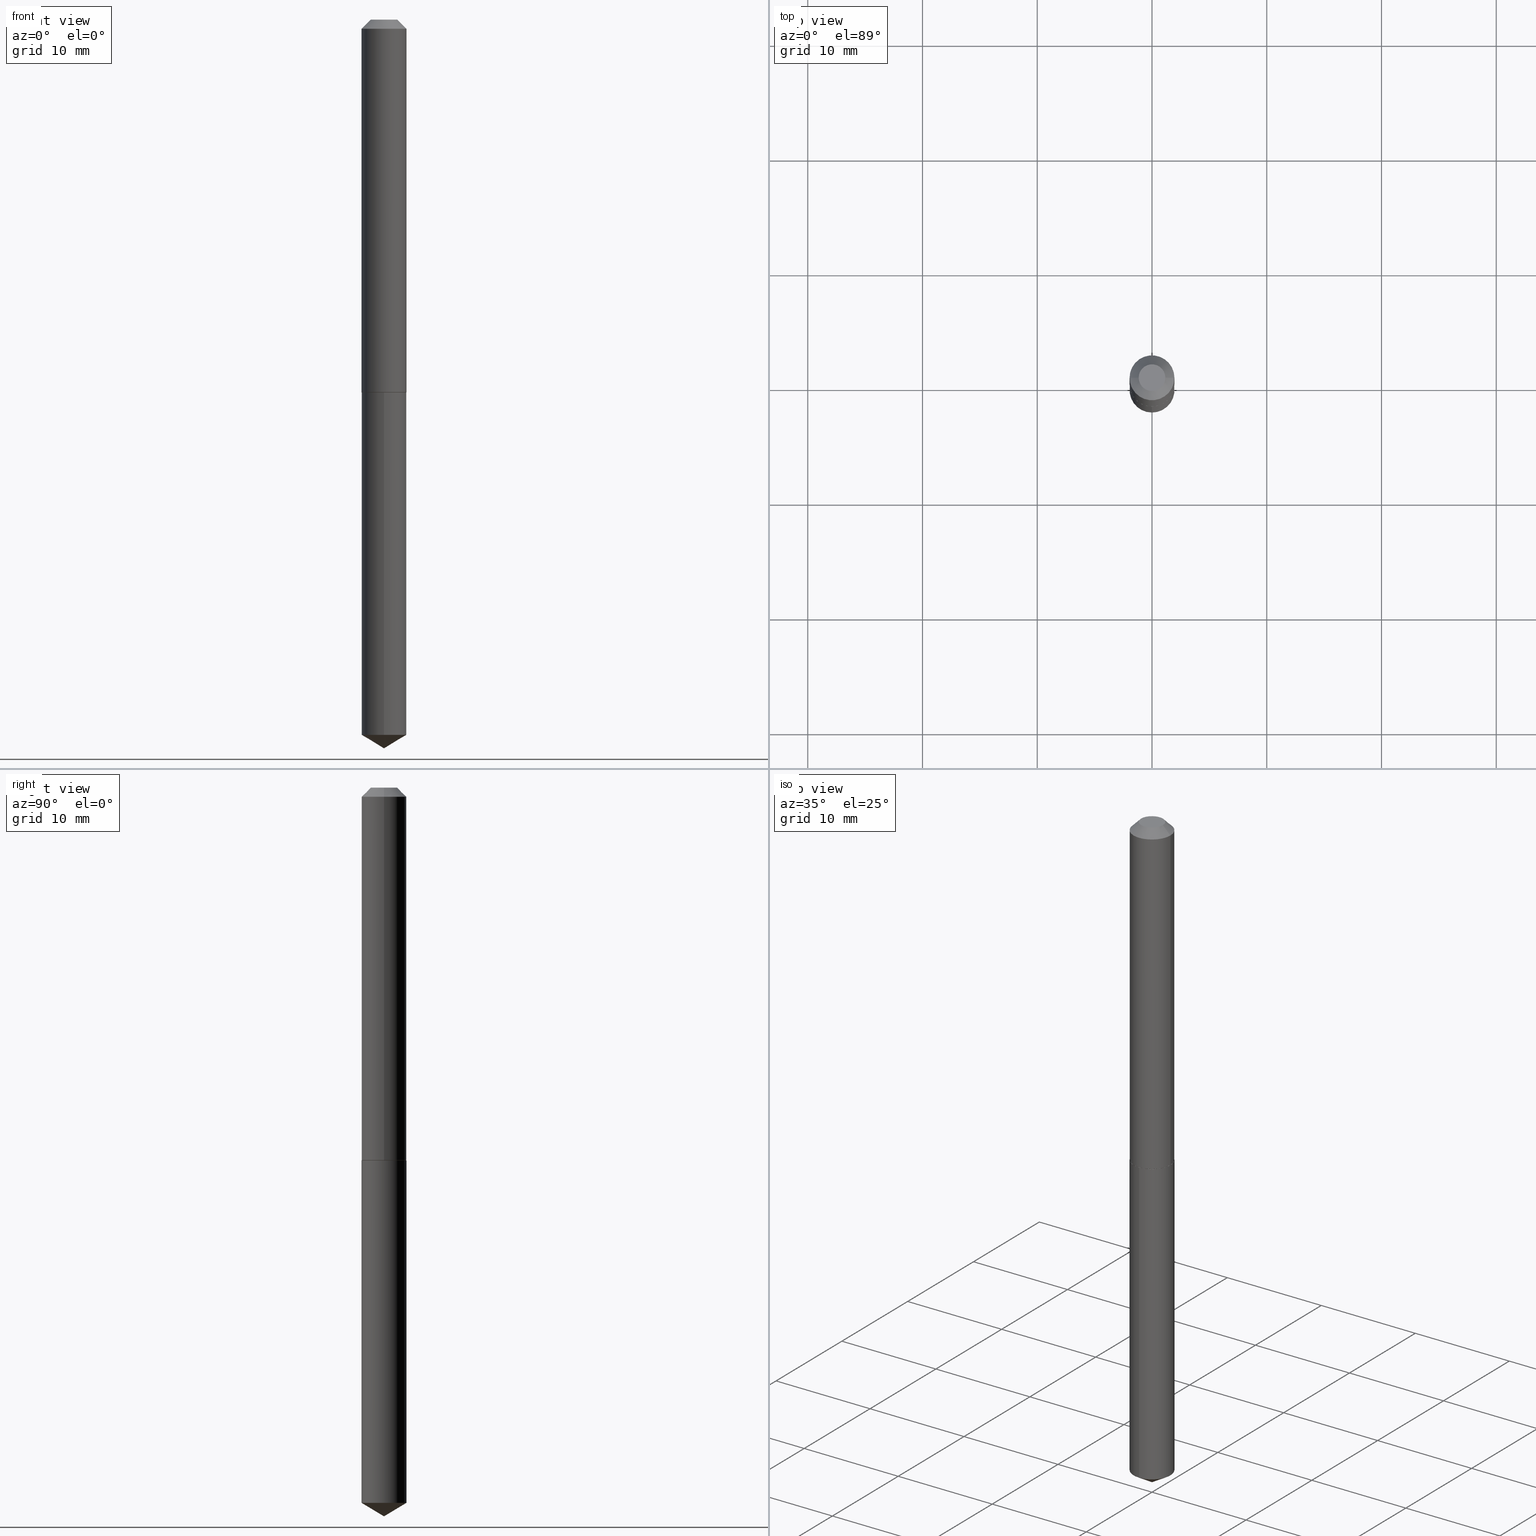
[diagram: canonical four-view strip — front | top / right | iso, engineering-drawing reading convention]
A machine part, canonical four-view strip (front | top / right | iso — engineering-drawing reading convention). The complete STEP part file that produces these views, byte-faithful:
ISO-10303-21;
HEADER;
FILE_DESCRIPTION (( 'STEP AP203' ),
    '1' );
FILE_NAME ('57142.STEP',
    '2024-04-22T22:50:21',
    ( '' ),
    ( '' ),
    'SwSTEP 2.0',
    'SolidWorks 2023',
    '' );
FILE_SCHEMA (( 'CONFIG_CONTROL_DESIGN' ));
ENDSEC;

DATA;
#1 = LINE ( 'NONE', #327, #279 ) ;
#2 = CARTESIAN_POINT ( 'NONE',  ( 5.471179065353372867E-16, 0.07699999999999551648, -1.279000000000000581 ) ) ;
#3 = DIRECTION ( 'NONE',  ( -6.982962677686266711E-15, -1.000000000000000000, 3.547854537226316370E-15 ) ) ;
#4 = CIRCLE ( 'NONE', #12, 0.07699999999999998512 ) ;
#5 =( NAMED_UNIT ( * ) PLANE_ANGLE_UNIT ( ) SI_UNIT ( $, .RADIAN. ) );
#6 = ADVANCED_FACE ( 'NONE', ( #99 ), #270, .T. ) ;
#7 = DIRECTION ( 'NONE',  ( -1.000000000000000000, 6.982962677686266711E-15, 0.000000000000000000 ) ) ;
#8 = ORIENTED_EDGE ( 'NONE', *, *, #277, .T. ) ;
#9 = ORIENTED_EDGE ( 'NONE', *, *, #37, .T. ) ;
#10 = ADVANCED_FACE ( 'NONE', ( #362 ), #113, .T. ) ;
#11 = DIRECTION ( 'NONE',  ( 6.982962677686265922E-15, 1.000000000000000000, -3.491286054920720957E-15 ) ) ;
#12 = AXIS2_PLACEMENT_3D ( 'NONE', #151, #271, #3 ) ;
#13 = CARTESIAN_POINT ( 'NONE',  ( 0.000000000000000000, 0.000000000000000000, 0.000000000000000000 ) ) ;
#14 = ORIENTED_EDGE ( 'NONE', *, *, #37, .F. ) ;
#15 = ORIENTED_EDGE ( 'NONE', *, *, #272, .F. ) ;
#16 = DIRECTION ( 'NONE',  ( 1.000000000000000000, -6.982962677686264344E-15, 0.000000000000000000 ) ) ;
#17 = CIRCLE ( 'NONE', #242, 0.07699999999999998512 ) ;
#18 = CC_DESIGN_SECURITY_CLASSIFICATION ( #379, ( #223 ) ) ;
#19 = EDGE_CURVE ( 'NONE', #29, #309, #1, .T. ) ;
#20 = PERSON_AND_ORGANIZATION_ROLE ( 'design_supplier' ) ;
#21 = DIRECTION ( 'NONE',  ( -2.438088387897960049E-29, 3.491481338843145188E-15, 1.000000000000000000 ) ) ;
#22 = CALENDAR_DATE ( 2024, 22, 4 ) ;
#23 = CARTESIAN_POINT ( 'NONE',  ( 3.127754603110790340E-29, -4.465604632380384411E-15, -1.279000000000000137 ) ) ;
#24 = CIRCLE ( 'NONE', #338, 0.07700000000000015166 ) ;
#25 = DIRECTION ( 'NONE',  ( -6.982962677686265133E-15, -1.000000000000000000, 3.468864327941574493E-15 ) ) ;
#26 = CC_DESIGN_DATE_AND_TIME_ASSIGNMENT ( #204, #141, ( #379 ) ) ;
#27 = PRODUCT_DEFINITION_SHAPE ( 'NONE', 'NONE',  #232 ) ;
#28 = DIRECTION ( 'NONE',  ( 1.000000000000000000, -6.982962677686266711E-15, 4.876185858279221524E-29 ) ) ;
#29 = VERTEX_POINT ( 'NONE', #66 ) ;
#30 = ORIENTED_EDGE ( 'NONE', *, *, #148, .T. ) ;
#31 = CARTESIAN_POINT ( 'NONE',  ( 0.07700000000000015166, -5.001547017892806517E-15, -1.278500000000000414 ) ) ;
#32 = VECTOR ( 'NONE', #297, 39.37007874015748143 ) ;
#33 = ORGANIZATION ( 'UNSPECIFIED', 'UNSPECIFIED', '' ) ;
#34 = CARTESIAN_POINT ( 'NONE',  ( 0.04574999999999999206, -4.756174605326522834E-16, 1.224646799175128183E-19 ) ) ;
#35 = ORIENTED_EDGE ( 'NONE', *, *, #319, .T. ) ;
#36 = CARTESIAN_POINT ( 'NONE',  ( -0.07699999999999998512, 4.285793343429934735E-16, -0.03125000000000019429 ) ) ;
#37 = EDGE_CURVE ( 'NONE', #29, #227, #24, .T. ) ;
#38 = AXIS2_PLACEMENT_3D ( 'NONE', #46, #340, #7 ) ;
#39 = APPROVAL_ROLE ( '' ) ;
#40 = ORIENTED_EDGE ( 'NONE', *, *, #103, .F. ) ;
#41 = DATE_TIME_ROLE ( 'creation_date' ) ;
#42 = ORIENTED_EDGE ( 'NONE', *, *, #203, .T. ) ;
#43 = ADVANCED_FACE ( 'NONE', ( #301 ), #186, .T. ) ;
#44 = MANIFOLD_SOLID_BREP ( 'Body-Move/Copy2[1]', #129 ) ;
#45 = AXIS2_PLACEMENT_3D ( 'NONE', #187, #155, #131 ) ;
#46 = CARTESIAN_POINT ( 'NONE',  ( 7.642090019328599159E-31, -1.091087918388489774E-16, -0.03125000000000019429 ) ) ;
#47 = AXIS2_PLACEMENT_3D ( 'NONE', #13, #313, #255 ) ;
#48 = COORDINATED_UNIVERSAL_TIME_OFFSET ( 5, 0, .BEHIND. ) ;
#49 = ORIENTED_EDGE ( 'NONE', *, *, #266, .F. ) ;
#50 = DIRECTION ( 'NONE',  ( -1.000000000000000000, 6.982962677686266711E-15, 0.000000000000000000 ) ) ;
#51 = EDGE_CURVE ( 'NONE', #120, #29, #59, .T. ) ;
#52 = ORIENTED_EDGE ( 'NONE', *, *, #91, .T. ) ;
#53 = APPROVAL_ROLE ( '' ) ;
#54 = DIRECTION ( 'NONE',  ( -2.445468806185136597E-29, 3.491481338843145583E-15, 1.000000000000000000 ) ) ;
#55 = VECTOR ( 'NONE', #176, 39.37007874015748143 ) ;
#56 = CC_DESIGN_PERSON_AND_ORGANIZATION_ASSIGNMENT ( #197, #20, ( #223 ) ) ;
#57 = APPROVAL_STATUS ( 'not_yet_approved' ) ;
#58 = ADVANCED_FACE ( 'NONE', ( #139 ), #221, .T. ) ;
#59 = LINE ( 'NONE', #168, #363 ) ;
#60 = DIRECTION ( 'NONE',  ( 6.090539988449788691E-15, 0.8571673007021154422, 0.5150380749100490485 ) ) ;
#61 = VECTOR ( 'NONE', #241, 39.37007874015748143 ) ;
#62 = LINE ( 'NONE', #273, #32 ) ;
#63 = DIRECTION ( 'NONE',  ( -2.445468806185136597E-29, 3.491481338843145583E-15, 1.000000000000000000 ) ) ;
#64 = CARTESIAN_POINT ( 'NONE',  ( 3.127754603110790340E-29, -4.465604632380384411E-15, -1.279000000000000137 ) ) ;
#65 = EDGE_LOOP ( 'NONE', ( #133, #123, #35, #52 ) ) ;
#66 = CARTESIAN_POINT ( 'NONE',  ( -0.07700000000000015166, -3.916740985175684490E-15, -1.278500000000000414 ) ) ;
#67 = CIRCLE ( 'NONE', #200, 0.07650000000000012346 ) ;
#68 = LINE ( 'NONE', #184, #251 ) ;
#69 = EDGE_LOOP ( 'NONE', ( #30, #77, #163, #348 ) ) ;
#70 = DIRECTION ( 'NONE',  ( -2.445468806185136597E-29, 3.491481338843145583E-15, 1.000000000000000000 ) ) ;
#71 = DATE_AND_TIME ( #159, #90 ) ;
#72 = APPROVAL_STATUS ( 'not_yet_approved' ) ;
#73 = ORIENTED_EDGE ( 'NONE', *, *, #211, .T. ) ;
#74 = DIRECTION ( 'NONE',  ( 1.000000000000000000, -6.982962677686268288E-15, 0.000000000000000000 ) ) ;
#75 = CONICAL_SURFACE ( 'NONE', #291, 0.07700000000000015166, 0.7853981633975678500 ) ;
#76 = LOCAL_TIME ( 18, 50, 21.00000000000000000, #260 ) ;
#77 = ORIENTED_EDGE ( 'NONE', *, *, #51, .T. ) ;
#78 = DIRECTION ( 'NONE',  ( 2.445468806185136597E-29, -3.491481338843145583E-15, -1.000000000000000000 ) ) ;
#79 = VERTEX_POINT ( 'NONE', #261 ) ;
#80 = PERSON_AND_ORGANIZATION ( #175, #33 ) ;
#81 = APPROVAL_STATUS ( 'not_yet_approved' ) ;
#82 = DIRECTION ( 'NONE',  ( -2.445468806185136597E-29, 3.491481338843145583E-15, 1.000000000000000000 ) ) ;
#83 = VECTOR ( 'NONE', #60, 39.37007874015748854 ) ;
#84 = DATE_AND_TIME ( #257, #76 ) ;
#85 = CARTESIAN_POINT ( 'NONE',  ( 3.127754603110790340E-29, -4.465604632380384411E-15, -1.279000000000000137 ) ) ;
#86 = CC_DESIGN_PERSON_AND_ORGANIZATION_ASSIGNMENT ( #167, #287, ( #379 ) ) ;
#87 = DATE_AND_TIME ( #22, #286 ) ;
#88 = CARTESIAN_POINT ( 'NONE',  ( -9.016982967922048906E-28, 1.287237419812039827E-13, 36.87007874015748143 ) ) ;
#89 = LINE ( 'NONE', #213, #55 ) ;
#90 = LOCAL_TIME ( 18, 50, 21.00000000000000000, #219 ) ;
#91 = EDGE_CURVE ( 'NONE', #309, #110, #17, .T. ) ;
#92 = APPROVAL ( #57, 'UNSPECIFIED' ) ;
#93 = ORIENTED_EDGE ( 'NONE', *, *, #140, .T. ) ;
#94 = CARTESIAN_POINT ( 'NONE',  ( 0.07650000000000012346, -4.999801277223384225E-15, -1.279000000000000137 ) ) ;
#95 = EDGE_CURVE ( 'NONE', #195, #127, #356, .T. ) ;
#96 = CIRCLE ( 'NONE', #119, 0.04574999999999999206 ) ;
#97 = CARTESIAN_POINT ( 'NONE',  ( -0.07699999999999998512, -1.739365935239627784E-15, -0.03125000000000019429 ) ) ;
#98 =( NAMED_UNIT ( * ) SI_UNIT ( $, .STERADIAN. ) SOLID_ANGLE_UNIT ( ) );
#99 = FACE_OUTER_BOUND ( 'NONE', #209, .T. ) ;
#100 = DIRECTION ( 'NONE',  ( -5.985567269335953112E-15, -0.8571673007021117785, 0.5150380749100550437 ) ) ;
#101 = EDGE_LOOP ( 'NONE', ( #389, #258 ) ) ;
#102 = AXIS2_PLACEMENT_3D ( 'NONE', #201, #263, #16 ) ;
#103 = EDGE_CURVE ( 'NONE', #79, #118, #171, .T. ) ;
#104 = ORIENTED_EDGE ( 'NONE', *, *, #19, .F. ) ;
#105 = DIRECTION ( 'NONE',  ( -6.982962677686266711E-15, -1.000000000000000000, 3.547854537226316370E-15 ) ) ;
#106 = PERSON_AND_ORGANIZATION ( #175, #33 ) ;
#107 = ORIENTED_EDGE ( 'NONE', *, *, #103, .T. ) ;
#108 = EDGE_CURVE ( 'NONE', #268, #256, #96, .T. ) ;
#109 = AXIS2_PLACEMENT_3D ( 'NONE', #377, #369, #105 ) ;
#110 = VERTEX_POINT ( 'NONE', #288 ) ;
#111 = APPROVAL ( #81, 'UNSPECIFIED' ) ;
#112 = DIRECTION ( 'NONE',  ( 1.000000000000000000, -6.982962677686268288E-15, 0.000000000000000000 ) ) ;
#113 = CONICAL_SURFACE ( 'NONE', #383, 65.52281426576880108, 1.029744258676656976 ) ;
#114 = APPROVAL_DATE_TIME ( #87, #92 ) ;
#115 = CARTESIAN_POINT ( 'NONE',  ( -2.994835545909279866E-48, 4.275831445896906749E-34, 1.224646799147334125E-19 ) ) ;
#116 = EDGE_CURVE ( 'NONE', #127, #190, #247, .T. ) ;
#117 = DIRECTION ( 'NONE',  ( 2.438088387897960049E-29, -3.491481338843145188E-15, -1.000000000000000000 ) ) ;
#118 = VERTEX_POINT ( 'NONE', #347 ) ;
#119 = AXIS2_PLACEMENT_3D ( 'NONE', #285, #357, #289 ) ;
#120 = VERTEX_POINT ( 'NONE', #317 ) ;
#121 = CARTESIAN_POINT ( 'NONE',  ( 3.127754603110790340E-29, -4.465604632380384411E-15, -1.279000000000000137 ) ) ;
#122 = DIRECTION ( 'NONE',  ( 1.000000000000000000, -6.982962677686268288E-15, 0.000000000000000000 ) ) ;
#123 = ORIENTED_EDGE ( 'NONE', *, *, #108, .F. ) ;
#124 = AXIS2_PLACEMENT_3D ( 'NONE', #233, #54, #325 ) ;
#125 = FACE_OUTER_BOUND ( 'NONE', #65, .T. ) ;
#126 = DIRECTION ( 'NONE',  ( 2.445605172219320473E-29, -3.491286054920720957E-15, -1.000000000000000000 ) ) ;
#127 = VERTEX_POINT ( 'NONE', #137 ) ;
#128 = ORIENTED_EDGE ( 'NONE', *, *, #51, .F. ) ;
#129 = CLOSED_SHELL ( 'NONE', ( #381, #10, #58, #218, #368 ) ) ;
#130 = FACE_OUTER_BOUND ( 'NONE', #367, .T. ) ;
#131 = DIRECTION ( 'NONE',  ( -6.982962677686266711E-15, -1.000000000000000000, 3.547854537226316370E-15 ) ) ;
#132 = ADVANCED_FACE ( 'NONE', ( #353 ), #264, .F. ) ;
#133 = ORIENTED_EDGE ( 'NONE', *, *, #140, .F. ) ;
#134 = EDGE_LOOP ( 'NONE', ( #212, #73, #265, #150 ) ) ;
#135 = UNCERTAINTY_MEASURE_WITH_UNIT (LENGTH_MEASURE( 1.000000000000000082E-05 ), #336, 'distance_accuracy_value', 'NONE');
#136 = PERSON_AND_ORGANIZATION ( #175, #33 ) ;
#137 = CARTESIAN_POINT ( 'NONE',  ( -5.376881261818110691E-16, -0.07700000000000446765, -1.278999999999999915 ) ) ;
#138 = APPROVAL_DATE_TIME ( #84, #111 ) ;
#139 = FACE_OUTER_BOUND ( 'NONE', #185, .T. ) ;
#140 = EDGE_CURVE ( 'NONE', #256, #110, #387, .T. ) ;
#141 = DATE_TIME_ROLE ( 'classification_date' ) ;
#142 = DIRECTION ( 'NONE',  ( -2.445605172219321034E-29, 3.491286054920720957E-15, 1.000000000000000000 ) ) ;
#143 = EDGE_CURVE ( 'NONE', #110, #309, #228, .T. ) ;
#144 = ORIENTED_EDGE ( 'NONE', *, *, #143, .F. ) ;
#145 = AXIS2_PLACEMENT_3D ( 'NONE', #121, #334, #364 ) ;
#146 = ORIENTED_EDGE ( 'NONE', *, *, #283, .T. ) ;
#147 = CC_DESIGN_APPROVAL ( #92, ( #223 ) ) ;
#148 = EDGE_CURVE ( 'NONE', #225, #120, #274, .T. ) ;
#149 = DIRECTION ( 'NONE',  ( -2.445468806185136597E-29, 3.491481338843145583E-15, 1.000000000000000000 ) ) ;
#150 = ORIENTED_EDGE ( 'NONE', *, *, #308, .F. ) ;
#151 = CARTESIAN_POINT ( 'NONE',  ( 3.127754603110790340E-29, -4.465604632380384411E-15, -1.279000000000000137 ) ) ;
#152 = CARTESIAN_POINT ( 'NONE',  ( 0.000000000000000000, 0.000000000000000000, 0.000000000000000000 ) ) ;
#153 = AXIS2_PLACEMENT_3D ( 'NONE', #275, #126, #11 ) ;
#154 =( GEOMETRIC_REPRESENTATION_CONTEXT ( 3 ) GLOBAL_UNCERTAINTY_ASSIGNED_CONTEXT ( ( #135 ) ) GLOBAL_UNIT_ASSIGNED_CONTEXT ( ( #336, #5, #98 ) ) REPRESENTATION_CONTEXT ( 'NONE', 'WORKASPACE' ) );
#155 = DIRECTION ( 'NONE',  ( -2.445605172219321034E-29, 3.491286054920720957E-15, 1.000000000000000000 ) ) ;
#156 = CC_DESIGN_PERSON_AND_ORGANIZATION_ASSIGNMENT ( #250, #191, ( #232 ) ) ;
#157 = APPROVAL_DATE_TIME ( #366, #386 ) ;
#158 = ORIENTED_EDGE ( 'NONE', *, *, #308, .T. ) ;
#159 = CALENDAR_DATE ( 2024, 22, 4 ) ;
#160 = ORIENTED_EDGE ( 'NONE', *, *, #91, .F. ) ;
#161 = ADVANCED_FACE ( 'NONE', ( #385 ), #354, .T. ) ;
#162 = CALENDAR_DATE ( 2024, 22, 4 ) ;
#163 = ORIENTED_EDGE ( 'NONE', *, *, #183, .F. ) ;
#164 = COORDINATED_UNIVERSAL_TIME_OFFSET ( 5, 0, .BEHIND. ) ;
#165 = CARTESIAN_POINT ( 'NONE',  ( 3.126531868707697538E-29, -4.463858891710962908E-15, -1.278500000000000414 ) ) ;
#166 = AXIS2_PLACEMENT_3D ( 'NONE', #85, #21, #174 ) ;
#167 = PERSON_AND_ORGANIZATION ( #175, #33 ) ;
#168 = CARTESIAN_POINT ( 'NONE',  ( -0.07700000000000015166, -3.916740985175684490E-15, -1.278500000000000414 ) ) ;
#169 = ADVANCED_FACE ( 'NONE', ( #318 ), #75, .T. ) ;
#170 = PRODUCT ( '57142', '57142', '', ( #194 ) ) ;
#171 = LINE ( 'NONE', #196, #83 ) ;
#172 = CARTESIAN_POINT ( 'NONE',  ( 7.642090019328599159E-31, -1.091087918388489774E-16, -0.03125000000000019429 ) ) ;
#173 = AXIS2_PLACEMENT_3D ( 'NONE', #115, #149, #28 ) ;
#174 = DIRECTION ( 'NONE',  ( 1.000000000000000000, -6.982962677686265922E-15, 4.876176775795935793E-29 ) ) ;
#175 = PERSON ( 'UNSPECIFIED', 'UNSPECIFIED', 'UNSPECIFIED', ('UNSPECIFIED'), ('UNSPECIFIED'), ('UNSPECIFIED') ) ;
#176 = DIRECTION ( 'NONE',  ( 0.7071067811866320607, -2.468850131083142557E-15, 0.7071067811864629737 ) ) ;
#177 = DIRECTION ( 'NONE',  ( -2.445605172219321034E-29, 3.491286054920720957E-15, 1.000000000000000000 ) ) ;
#178 = DIRECTION ( 'NONE',  ( 1.000000000000000000, -6.982962677686264344E-15, 0.000000000000000000 ) ) ;
#179 = EDGE_LOOP ( 'NONE', ( #314, #107, #370 ) ) ;
#180 = CARTESIAN_POINT ( 'NONE',  ( -1.497417772954639933E-48, 2.137915722948453374E-34, 6.123233995736670625E-20 ) ) ;
#181 = AXIS2_PLACEMENT_3D ( 'NONE', #220, #63, #332 ) ;
#182 = VECTOR ( 'NONE', #321, 39.37007874015748143 ) ;
#183 = EDGE_CURVE ( 'NONE', #227, #29, #306, .T. ) ;
#184 = CARTESIAN_POINT ( 'NONE',  ( 0.07700000000000005451, -5.376881261818429193E-16, 3.754656117362873559E-30 ) ) ;
#185 = EDGE_LOOP ( 'NONE', ( #40, #346, #282 ) ) ;
#186 = CYLINDRICAL_SURFACE ( 'NONE', #359, 0.07700000000000005451 ) ;
#187 = CARTESIAN_POINT ( 'NONE',  ( 3.127754603110790340E-29, -4.465604632380384411E-15, -1.279000000000000137 ) ) ;
#188 = AXIS2_PLACEMENT_3D ( 'NONE', #88, #237, #25 ) ;
#189 = CYLINDRICAL_SURFACE ( 'NONE', #45, 0.07699999999999998512 ) ;
#190 = VERTEX_POINT ( 'NONE', #2 ) ;
#191 = PERSON_AND_ORGANIZATION_ROLE ( 'creator' ) ;
#192 = LENGTH_MEASURE_WITH_UNIT ( LENGTH_MEASURE( 0.02539999999999999897 ), #342 );
#193 = VECTOR ( 'NONE', #202, 39.37007874015748143 ) ;
#194 = MECHANICAL_CONTEXT ( 'NONE', #230, 'mechanical' ) ;
#195 = VERTEX_POINT ( 'NONE', #390 ) ;
#196 = CARTESIAN_POINT ( 'NONE',  ( 6.114015989325795876E-29, -8.728215137301802786E-15, -2.500000000000000000 ) ) ;
#197 = PERSON_AND_ORGANIZATION ( #175, #33 ) ;
#198 = DIRECTION ( 'NONE',  ( 1.000000000000000000, -6.982962677686268288E-15, 0.000000000000000000 ) ) ;
#199 = CLOSED_SHELL ( 'NONE', ( #161, #6, #169, #132, #323, #43, #376, #254 ) ) ;
#200 = AXIS2_PLACEMENT_3D ( 'NONE', #64, #360, #178 ) ;
#201 = CARTESIAN_POINT ( 'NONE',  ( 3.127754603110790340E-29, -4.465604632380384411E-15, -1.279000000000000137 ) ) ;
#202 = DIRECTION ( 'NONE',  ( 0.7071067811865453523, -7.319954787623248157E-15, -0.7071067811865496822 ) ) ;
#203 = EDGE_CURVE ( 'NONE', #225, #227, #89, .T. ) ;
#204 = DATE_AND_TIME ( #236, #207 ) ;
#205 = CONICAL_SURFACE ( 'NONE', #38, 0.07699999999999998512, 0.7853981633974452814 ) ;
#206 = FACE_OUTER_BOUND ( 'NONE', #224, .T. ) ;
#207 = LOCAL_TIME ( 18, 50, 21.00000000000000000, #262 ) ;
#208 = FACE_OUTER_BOUND ( 'NONE', #134, .T. ) ;
#209 = EDGE_LOOP ( 'NONE', ( #312, #339, #144, #222 ) ) ;
#210 = DIRECTION ( 'NONE',  ( -2.445468806185136877E-29, 3.491481338843145188E-15, 1.000000000000000000 ) ) ;
#211 = EDGE_CURVE ( 'NONE', #118, #195, #267, .T. ) ;
#212 = ORIENTED_EDGE ( 'NONE', *, *, #277, .F. ) ;
#213 = CARTESIAN_POINT ( 'NONE',  ( 0.07700000000000015166, -5.001547017892806517E-15, -1.278500000000000414 ) ) ;
#214 = CIRCLE ( 'NONE', #173, 0.04574999999999999206 ) ;
#215 = ORIENTED_EDGE ( 'NONE', *, *, #95, .F. ) ;
#216 = CC_DESIGN_PERSON_AND_ORGANIZATION_ASSIGNMENT ( #80, #349, ( #223 ) ) ;
#217 = LINE ( 'NONE', #36, #61 ) ;
#218 = ADVANCED_FACE ( 'NONE', ( #208 ), #303, .T. ) ;
#219 = COORDINATED_UNIVERSAL_TIME_OFFSET ( 5, 0, .BEHIND. ) ;
#220 = CARTESIAN_POINT ( 'NONE',  ( 0.000000000000000000, 0.000000000000000000, 0.000000000000000000 ) ) ;
#221 = CONICAL_SURFACE ( 'NONE', #188, 65.52281426576880108, 1.029744258676656976 ) ;
#222 = ORIENTED_EDGE ( 'NONE', *, *, #283, .F. ) ;
#223 = PRODUCT_DEFINITION_FORMATION_WITH_SPECIFIED_SOURCE ( 'ANY', '', #170, .NOT_KNOWN. ) ;
#224 = EDGE_LOOP ( 'NONE', ( #128, #249, #42, #14 ) ) ;
#225 = VERTEX_POINT ( 'NONE', #94 ) ;
#226 = PERSON_AND_ORGANIZATION ( #175, #33 ) ;
#227 = VERTEX_POINT ( 'NONE', #31 ) ;
#228 = CIRCLE ( 'NONE', #378, 0.07699999999999998512 ) ;
#229 = SHAPE_DEFINITION_REPRESENTATION ( #27, #239 ) ;
#230 = APPLICATION_CONTEXT ( 'configuration controlled 3d designs of mechanical parts and assemblies' ) ;
#231 = CARTESIAN_POINT ( 'NONE',  ( 7.642090019328599159E-31, -1.091087918388489774E-16, -0.03125000000000019429 ) ) ;
#232 = PRODUCT_DEFINITION ( 'UNKNOWN', '', #223, #284 ) ;
#233 = CARTESIAN_POINT ( 'NONE',  ( 3.126531868707697538E-29, -4.463858891710962908E-15, -1.278500000000000414 ) ) ;
#234 = CARTESIAN_POINT ( 'NONE',  ( -5.376881261818110691E-16, -0.07700000000000446765, -1.278999999999999915 ) ) ;
#235 = CIRCLE ( 'NONE', #109, 0.07699999999999998512 ) ;
#236 = CALENDAR_DATE ( 2024, 22, 4 ) ;
#237 = DIRECTION ( 'NONE',  ( -2.445605172219321034E-29, 3.491286054920720957E-15, 1.000000000000000000 ) ) ;
#238 = DIMENSIONAL_EXPONENTS ( 1.000000000000000000, 0.000000000000000000, 0.000000000000000000, 0.000000000000000000, 0.000000000000000000, 0.000000000000000000, 0.000000000000000000 ) ;
#239 = ADVANCED_BREP_SHAPE_REPRESENTATION ( '57142', ( #44, #298, #47 ), #154 ) ;
#240 = DIRECTION ( 'NONE',  ( -0.7071067811866320607, 7.493145998870660238E-15, 0.7071067811864629737 ) ) ;
#241 = DIRECTION ( 'NONE',  ( -0.7071067811865453523, 2.468850131082234184E-15, -0.7071067811865496822 ) ) ;
#242 = AXIS2_PLACEMENT_3D ( 'NONE', #172, #382, #198 ) ;
#243 = DIRECTION ( 'NONE',  ( -2.445605172219321034E-29, 3.491286054920720957E-15, 1.000000000000000000 ) ) ;
#244 = DIRECTION ( 'NONE',  ( -2.445468806185136597E-29, 3.491481338843145583E-15, 1.000000000000000000 ) ) ;
#245 = FACE_OUTER_BOUND ( 'NONE', #101, .T. ) ;
#246 = DIRECTION ( 'NONE',  ( -6.982962677686266711E-15, -1.000000000000000000, 3.547854537226316370E-15 ) ) ;
#247 = CIRCLE ( 'NONE', #384, 0.07699999999999998512 ) ;
#248 = APPLICATION_PROTOCOL_DEFINITION ( 'international standard', 'config_control_design', 1994, #351 ) ;
#249 = ORIENTED_EDGE ( 'NONE', *, *, #266, .T. ) ;
#250 = PERSON_AND_ORGANIZATION ( #175, #33 ) ;
#251 = VECTOR ( 'NONE', #210, 39.37007874015748143 ) ;
#252 = EDGE_LOOP ( 'NONE', ( #294, #8, #280, #215 ) ) ;
#253 = FACE_OUTER_BOUND ( 'NONE', #252, .T. ) ;
#254 = ADVANCED_FACE ( 'NONE', ( #245 ), #269, .F. ) ;
#255 = DIRECTION ( 'NONE',  ( 1.000000000000000000, 0.000000000000000000, 0.000000000000000000 ) ) ;
#256 = VERTEX_POINT ( 'NONE', #34 ) ;
#257 = CALENDAR_DATE ( 2024, 22, 4 ) ;
#258 = ORIENTED_EDGE ( 'NONE', *, *, #272, .T. ) ;
#259 = PERSON_AND_ORGANIZATION ( #175, #33 ) ;
#260 = COORDINATED_UNIVERSAL_TIME_OFFSET ( 5, 0, .BEHIND. ) ;
#261 = CARTESIAN_POINT ( 'NONE',  ( 6.114012930548303566E-29, -8.728215137301802786E-15, -2.500000000000000000 ) ) ;
#262 = COORDINATED_UNIVERSAL_TIME_OFFSET ( 5, 0, .BEHIND. ) ;
#263 = DIRECTION ( 'NONE',  ( -2.445468806185136597E-29, 3.491481338843145583E-15, 1.000000000000000000 ) ) ;
#264 = PLANE ( 'NONE',  #166 ) ;
#265 = ORIENTED_EDGE ( 'NONE', *, *, #95, .T. ) ;
#266 = EDGE_CURVE ( 'NONE', #120, #225, #67, .T. ) ;
#267 = CIRCLE ( 'NONE', #345, 0.07699999999999998512 ) ;
#268 = VERTEX_POINT ( 'NONE', #326 ) ;
#269 = PLANE ( 'NONE',  #373 ) ;
#270 = CYLINDRICAL_SURFACE ( 'NONE', #181, 0.07700000000000005451 ) ;
#271 = DIRECTION ( 'NONE',  ( -2.445605172219321034E-29, 3.491286054920720957E-15, 1.000000000000000000 ) ) ;
#272 = EDGE_CURVE ( 'NONE', #256, #268, #214, .T. ) ;
#273 = CARTESIAN_POINT ( 'NONE',  ( 5.471179065353082960E-16, 0.07699999999999551648, -1.279000000000000581 ) ) ;
#274 = CIRCLE ( 'NONE', #102, 0.07650000000000012346 ) ;
#275 = CARTESIAN_POINT ( 'NONE',  ( 3.127754603110790340E-29, -4.465604632380384411E-15, -1.279000000000000137 ) ) ;
#276 = EDGE_LOOP ( 'NONE', ( #104, #9, #146, #160 ) ) ;
#277 = EDGE_CURVE ( 'NONE', #118, #190, #62, .T. ) ;
#278 = CARTESIAN_POINT ( 'NONE',  ( 6.113664106232860396E-29, -8.728714673575365857E-15, -2.500000000000000000 ) ) ;
#279 = VECTOR ( 'NONE', #296, 39.37007874015748143 ) ;
#280 = ORIENTED_EDGE ( 'NONE', *, *, #116, .F. ) ;
#281 = CC_DESIGN_APPROVAL ( #386, ( #232 ) ) ;
#282 = ORIENTED_EDGE ( 'NONE', *, *, #211, .F. ) ;
#283 = EDGE_CURVE ( 'NONE', #227, #110, #68, .T. ) ;
#284 = DESIGN_CONTEXT ( 'detailed design', #351, 'design' ) ;
#285 = CARTESIAN_POINT ( 'NONE',  ( -2.994835545909279866E-48, 4.275831445896906749E-34, 1.224646799147334125E-19 ) ) ;
#286 = LOCAL_TIME ( 18, 50, 21.00000000000000000, #164 ) ;
#287 = PERSON_AND_ORGANIZATION_ROLE ( 'classification_officer' ) ;
#288 = CARTESIAN_POINT ( 'NONE',  ( 0.07699999999999998512, -6.467969180206915269E-16, -0.03125000000000019429 ) ) ;
#289 = DIRECTION ( 'NONE',  ( 1.000000000000000000, -6.982962677686266711E-15, 4.876185858279221524E-29 ) ) ;
#290 = CARTESIAN_POINT ( 'NONE',  ( 7.642090019328599159E-31, -1.091087918388489774E-16, -0.03125000000000019429 ) ) ;
#291 = AXIS2_PLACEMENT_3D ( 'NONE', #165, #380, #112 ) ;
#292 = DIRECTION ( 'NONE',  ( 1.000000000000000000, -6.982962677686268288E-15, 0.000000000000000000 ) ) ;
#293 = DIRECTION ( 'NONE',  ( -2.445468806185136597E-29, 3.491481338843145583E-15, 1.000000000000000000 ) ) ;
#294 = ORIENTED_EDGE ( 'NONE', *, *, #344, .T. ) ;
#295 = CC_DESIGN_PERSON_AND_ORGANIZATION_ASSIGNMENT ( #106, #310, ( #170 ) ) ;
#296 = DIRECTION ( 'NONE',  ( -2.445468806185136877E-29, 3.491481338843145188E-15, 1.000000000000000000 ) ) ;
#297 = DIRECTION ( 'NONE',  ( -2.445605172219321314E-29, 3.491286054920720957E-15, 1.000000000000000000 ) ) ;
#298 = MANIFOLD_SOLID_BREP ( 'Body-Move/Copy2[2]', #199 ) ;
#299 = AXIS2_PLACEMENT_3D ( 'NONE', #324, #293, #74 ) ;
#300 = APPROVAL_PERSON_ORGANIZATION ( #226, #386, #39 ) ;
#301 = FACE_OUTER_BOUND ( 'NONE', #276, .T. ) ;
#302 = CARTESIAN_POINT ( 'NONE',  ( -9.016982967922048906E-28, 1.287237419812039827E-13, 36.87007874015748143 ) ) ;
#303 = CYLINDRICAL_SURFACE ( 'NONE', #145, 0.07699999999999998512 ) ;
#304 = ORIENTED_EDGE ( 'NONE', *, *, #143, .T. ) ;
#305 = APPLICATION_PROTOCOL_DEFINITION ( 'international standard', 'config_control_design', 1994, #230 ) ;
#306 = CIRCLE ( 'NONE', #124, 0.07700000000000015166 ) ;
#307 = LOCAL_TIME ( 18, 50, 21.00000000000000000, #48 ) ;
#308 = EDGE_CURVE ( 'NONE', #190, #127, #4, .T. ) ;
#309 = VERTEX_POINT ( 'NONE', #97 ) ;
#310 = PERSON_AND_ORGANIZATION_ROLE ( 'design_owner' ) ;
#311 = ORIENTED_EDGE ( 'NONE', *, *, #148, .F. ) ;
#312 = ORIENTED_EDGE ( 'NONE', *, *, #183, .T. ) ;
#313 = DIRECTION ( 'NONE',  ( 0.000000000000000000, 0.000000000000000000, 1.000000000000000000 ) ) ;
#314 = ORIENTED_EDGE ( 'NONE', *, *, #358, .F. ) ;
#315 = CARTESIAN_POINT ( 'NONE',  ( 0.07699999999999998512, -6.373671376672568172E-16, -0.03125000000000019429 ) ) ;
#316 = SECURITY_CLASSIFICATION_LEVEL ( 'unclassified' ) ;
#317 = CARTESIAN_POINT ( 'NONE',  ( -0.07650000000000012346, -3.919390212349795691E-15, -1.279000000000000137 ) ) ;
#318 = FACE_OUTER_BOUND ( 'NONE', #69, .T. ) ;
#319 = EDGE_CURVE ( 'NONE', #268, #309, #217, .T. ) ;
#320 = DIRECTION ( 'NONE',  ( -6.982962677686266711E-15, -1.000000000000000000, 3.547854537226316370E-15 ) ) ;
#321 = DIRECTION ( 'NONE',  ( -2.445605172219321314E-29, 3.491286054920720957E-15, 1.000000000000000000 ) ) ;
#322 = VECTOR ( 'NONE', #100, 39.37007874015748143 ) ;
#323 = ADVANCED_FACE ( 'NONE', ( #206 ), #329, .T. ) ;
#324 = CARTESIAN_POINT ( 'NONE',  ( 3.126531868707697538E-29, -4.463858891710962908E-15, -1.278500000000000414 ) ) ;
#325 = DIRECTION ( 'NONE',  ( 1.000000000000000000, -6.982962677686268288E-15, 0.000000000000000000 ) ) ;
#326 = CARTESIAN_POINT ( 'NONE',  ( -0.04574999999999999206, 3.740249384235700572E-16, 1.224646799123087149E-19 ) ) ;
#327 = CARTESIAN_POINT ( 'NONE',  ( -0.07700000000000005451, 5.471179065352775305E-16, -3.787580019496280580E-30 ) ) ;
#328 = AXIS2_PLACEMENT_3D ( 'NONE', #231, #78, #50 ) ;
#329 = CONICAL_SURFACE ( 'NONE', #299, 0.07700000000000015166, 0.7853981633975678500 ) ;
#330 = DIRECTION ( 'NONE',  ( -1.000000000000000000, 6.982962677686265922E-15, -4.876176775795935793E-29 ) ) ;
#331 = CC_DESIGN_APPROVAL ( #111, ( #379 ) ) ;
#332 = DIRECTION ( 'NONE',  ( 1.000000000000000000, -6.982962677686266711E-15, 4.876176775795936353E-29 ) ) ;
#333 = PRODUCT_RELATED_PRODUCT_CATEGORY ( 'detail', '', ( #170 ) ) ;
#334 = DIRECTION ( 'NONE',  ( -2.445605172219321034E-29, 3.491286054920720957E-15, 1.000000000000000000 ) ) ;
#335 = CARTESIAN_POINT ( 'NONE',  ( 3.126531868707697538E-29, -4.463858891710962908E-15, -1.278500000000000414 ) ) ;
#336 =( CONVERSION_BASED_UNIT ( 'INCH', #192 ) LENGTH_UNIT ( ) NAMED_UNIT ( #238 ) );
#337 = PLANE ( 'NONE',  #153 ) ;
#338 = AXIS2_PLACEMENT_3D ( 'NONE', #335, #70, #122 ) ;
#339 = ORIENTED_EDGE ( 'NONE', *, *, #19, .T. ) ;
#340 = DIRECTION ( 'NONE',  ( 2.445468806185136597E-29, -3.491481338843145583E-15, -1.000000000000000000 ) ) ;
#341 = ORIENTED_EDGE ( 'NONE', *, *, #319, .F. ) ;
#342 =( LENGTH_UNIT ( ) NAMED_UNIT ( * ) SI_UNIT ( $, .METRE. ) );
#343 = ORIENTED_EDGE ( 'NONE', *, *, #116, .T. ) ;
#344 = EDGE_CURVE ( 'NONE', #195, #118, #235, .T. ) ;
#345 = AXIS2_PLACEMENT_3D ( 'NONE', #388, #243, #246 ) ;
#346 = ORIENTED_EDGE ( 'NONE', *, *, #358, .T. ) ;
#347 = CARTESIAN_POINT ( 'NONE',  ( 5.471179065353369908E-16, 0.07699999999999142253, -2.453733732334878681 ) ) ;
#348 = ORIENTED_EDGE ( 'NONE', *, *, #203, .F. ) ;
#349 = PERSON_AND_ORGANIZATION_ROLE ( 'creator' ) ;
#350 = DIRECTION ( 'NONE',  ( 1.000000000000000000, -6.982962677686266711E-15, 4.876176775795936353E-29 ) ) ;
#351 = APPLICATION_CONTEXT ( 'configuration controlled 3d designs of mechanical parts and assemblies' ) ;
#352 = APPROVAL_ROLE ( '' ) ;
#353 = FACE_OUTER_BOUND ( 'NONE', #375, .T. ) ;
#354 = CONICAL_SURFACE ( 'NONE', #328, 0.07699999999999998512, 0.7853981633974452814 ) ;
#355 = APPROVAL_PERSON_ORGANIZATION ( #259, #92, #352 ) ;
#356 = LINE ( 'NONE', #234, #182 ) ;
#357 = DIRECTION ( 'NONE',  ( -2.445468806185136597E-29, 3.491481338843145583E-15, 1.000000000000000000 ) ) ;
#358 = EDGE_CURVE ( 'NONE', #79, #195, #372, .T. ) ;
#359 = AXIS2_PLACEMENT_3D ( 'NONE', #152, #244, #350 ) ;
#360 = DIRECTION ( 'NONE',  ( -2.445468806185136597E-29, 3.491481338843145583E-15, 1.000000000000000000 ) ) ;
#361 = EDGE_LOOP ( 'NONE', ( #15, #93, #304, #341 ) ) ;
#362 = FACE_OUTER_BOUND ( 'NONE', #179, .T. ) ;
#363 = VECTOR ( 'NONE', #240, 39.37007874015748143 ) ;
#364 = DIRECTION ( 'NONE',  ( -6.982962677686266711E-15, -1.000000000000000000, 3.547854537226316370E-15 ) ) ;
#365 = DIRECTION ( 'NONE',  ( -6.982962677686265133E-15, -1.000000000000000000, 3.468864327941574493E-15 ) ) ;
#366 = DATE_AND_TIME ( #162, #307 ) ;
#367 = EDGE_LOOP ( 'NONE', ( #343, #158 ) ) ;
#368 = ADVANCED_FACE ( 'NONE', ( #130 ), #337, .F. ) ;
#369 = DIRECTION ( 'NONE',  ( -2.445605172219321034E-29, 3.491286054920720957E-15, 1.000000000000000000 ) ) ;
#370 = ORIENTED_EDGE ( 'NONE', *, *, #344, .F. ) ;
#371 = CC_DESIGN_DATE_AND_TIME_ASSIGNMENT ( #71, #41, ( #232 ) ) ;
#372 = LINE ( 'NONE', #278, #322 ) ;
#373 = AXIS2_PLACEMENT_3D ( 'NONE', #180, #117, #330 ) ;
#374 = APPROVAL_PERSON_ORGANIZATION ( #136, #111, #53 ) ;
#375 = EDGE_LOOP ( 'NONE', ( #311, #49 ) ) ;
#376 = ADVANCED_FACE ( 'NONE', ( #125 ), #205, .T. ) ;
#377 = CARTESIAN_POINT ( 'NONE',  ( 6.000689494889475679E-29, -8.566936130326114542E-15, -2.453733732334878237 ) ) ;
#378 = AXIS2_PLACEMENT_3D ( 'NONE', #290, #82, #292 ) ;
#379 = SECURITY_CLASSIFICATION ( '', '', #316 ) ;
#380 = DIRECTION ( 'NONE',  ( -2.445468806185136597E-29, 3.491481338843145583E-15, 1.000000000000000000 ) ) ;
#381 = ADVANCED_FACE ( 'NONE', ( #253 ), #189, .T. ) ;
#382 = DIRECTION ( 'NONE',  ( -2.445468806185136597E-29, 3.491481338843145583E-15, 1.000000000000000000 ) ) ;
#383 = AXIS2_PLACEMENT_3D ( 'NONE', #302, #177, #365 ) ;
#384 = AXIS2_PLACEMENT_3D ( 'NONE', #23, #142, #320 ) ;
#385 = FACE_OUTER_BOUND ( 'NONE', #361, .T. ) ;
#386 = APPROVAL ( #72, 'UNSPECIFIED' ) ;
#387 = LINE ( 'NONE', #315, #193 ) ;
#388 = CARTESIAN_POINT ( 'NONE',  ( 6.000689494889475679E-29, -8.566936130326114542E-15, -2.453733732334878237 ) ) ;
#389 = ORIENTED_EDGE ( 'NONE', *, *, #108, .T. ) ;
#390 = CARTESIAN_POINT ( 'NONE',  ( -5.376881261817823742E-16, -0.07700000000000856160, -2.453733732334877793 ) ) ;
ENDSEC;
END-ISO-10303-21;
